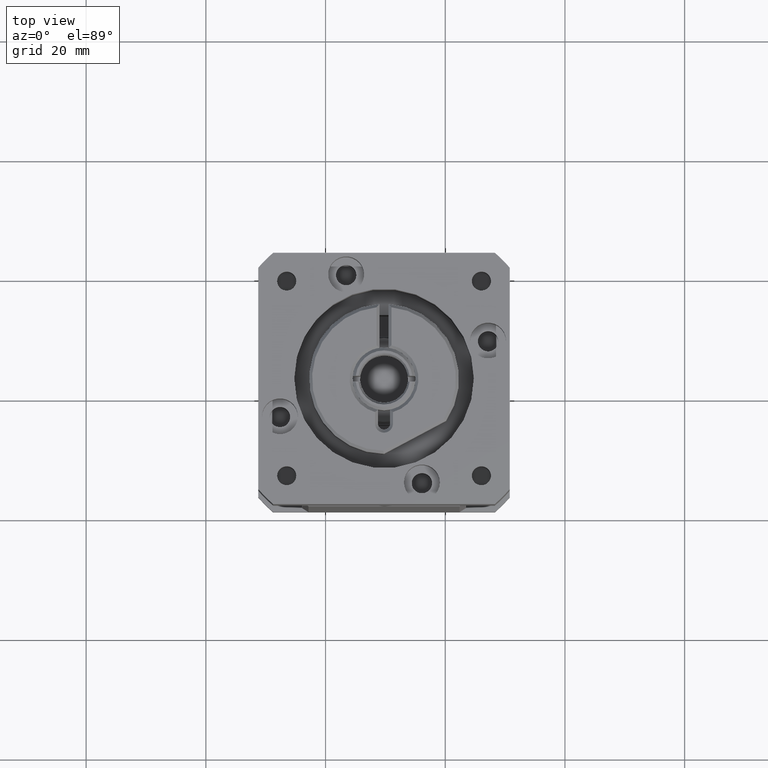
[diagram: clean part render]
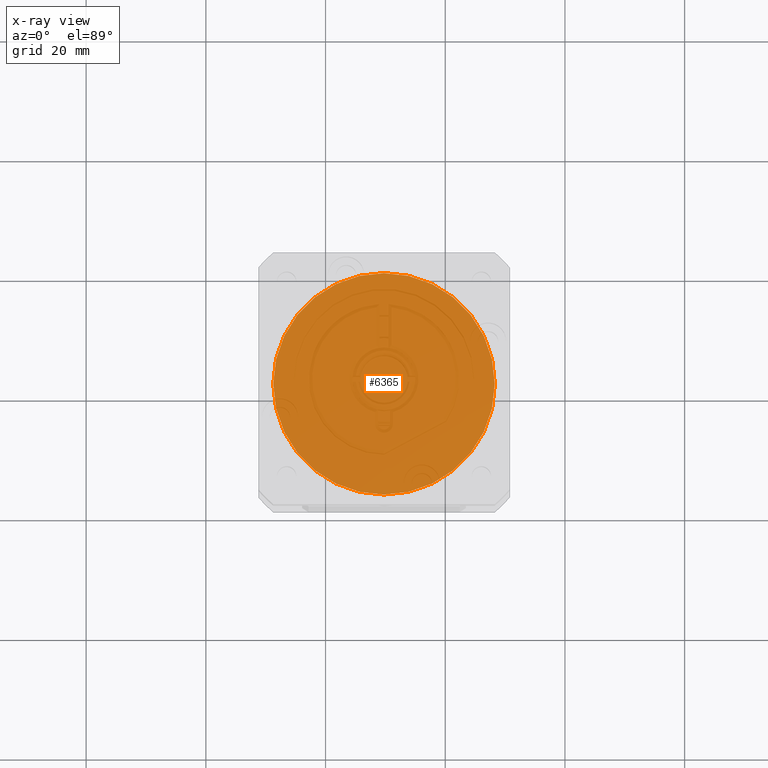
[diagram: x-ray — body ghosted, one internal face saturated and labeled with its STEP entity id]
A machine part, top view, then the same camera in x-ray: the body is ghosted and one INTERNAL B-rep face — a face not visible from any outside direction — is saturated and labeled: STEP entity #6365.
In plain terms, the highlighted planar face has unit normal (0, 0, -1).
Its self-contained STEP definition (entity closure, byte-faithful):
#743 = AXIS2_PLACEMENT_3D ( 'NONE', #5202, #2399, #6108 ) ;
#1376 = DIRECTION ( 'NONE',  ( -1.000000000000000000, 0.0000000000000000000, 0.0000000000000000000 ) ) ;
#1751 = EDGE_CURVE ( 'NONE', #6321, #8158, #4054, .T. ) ;
#1994 = AXIS2_PLACEMENT_3D ( 'NONE', #4798, #10184, #3855 ) ;
#2399 = DIRECTION ( 'NONE',  ( -0.0000000000000000000, -0.0000000000000000000, -1.000000000000000000 ) ) ;
#3284 = FACE_OUTER_BOUND ( 'NONE', #5980, .T. ) ;
#3855 = DIRECTION ( 'NONE',  ( 1.000000000000000000, 0.0000000000000000000, -0.0000000000000000000 ) ) ;
#4054 = CIRCLE ( 'NONE', #743, 18.49999999999996100 ) ;
#4114 = CIRCLE ( 'NONE', #7822, 18.49999999999996100 ) ;
#4562 = CARTESIAN_POINT ( 'NONE',  ( 3635.103875950607300, 1416.338132475112200, 24.99999999999999600 ) ) ;
#4564 = ORIENTED_EDGE ( 'NONE', *, *, #1751, .F. ) ;
#4798 = CARTESIAN_POINT ( 'NONE',  ( 3653.603875950607300, 1416.338132475112200, 24.99999999999999600 ) ) ;
#4841 = DIRECTION ( 'NONE',  ( -0.0000000000000000000, -0.0000000000000000000, -1.000000000000000000 ) ) ;
#5202 = CARTESIAN_POINT ( 'NONE',  ( 3653.603875950607300, 1416.338132475112200, 24.99999999999999600 ) ) ;
#5980 = EDGE_LOOP ( 'NONE', ( #11231, #4564 ) ) ;
#6108 = DIRECTION ( 'NONE',  ( -1.000000000000000000, 0.0000000000000000000, 0.0000000000000000000 ) ) ;
#6321 = VERTEX_POINT ( 'NONE', #10112 ) ;
#6365 = ADVANCED_FACE ( 'N', ( #3284 ), #10822, .T. ) ;
#6834 = EDGE_CURVE ( 'NONE', #8158, #6321, #4114, .T. ) ;
#7822 = AXIS2_PLACEMENT_3D ( 'NONE', #11240, #4841, #1376 ) ;
#8158 = VERTEX_POINT ( 'NONE', #4562 ) ;
#10112 = CARTESIAN_POINT ( 'NONE',  ( 3672.103875950606800, 1416.338132475112200, 24.99999999999999600 ) ) ;
#10184 = DIRECTION ( 'NONE',  ( 0.0000000000000000000, 0.0000000000000000000, 1.000000000000000000 ) ) ;
#10822 = PLANE ( 'NONE',  #1994 ) ;
#11231 = ORIENTED_EDGE ( 'NONE', *, *, #6834, .F. ) ;
#11240 = CARTESIAN_POINT ( 'NONE',  ( 3653.603875950607300, 1416.338132475112200, 24.99999999999999600 ) ) ;